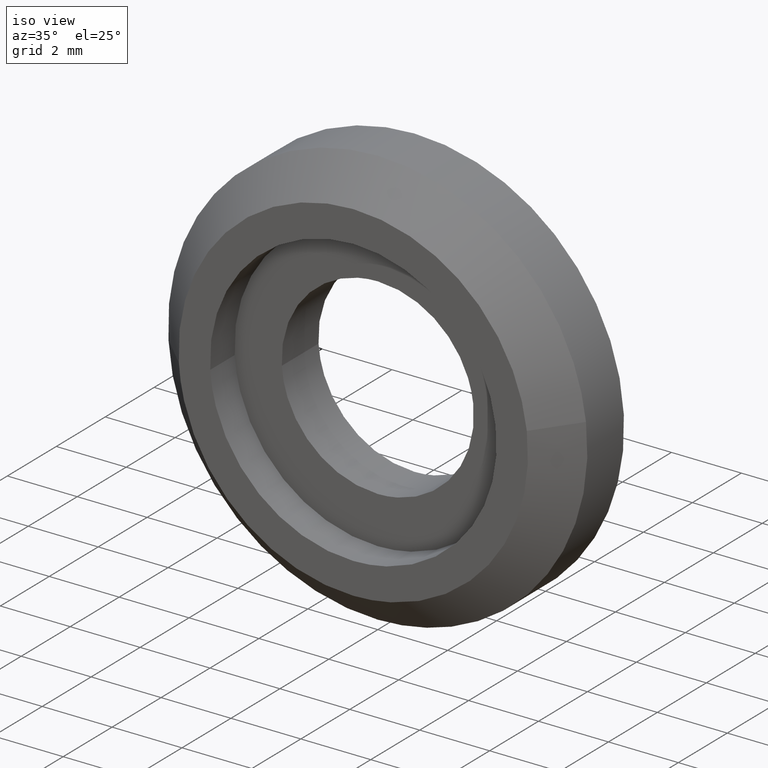
[diagram: clean part render]
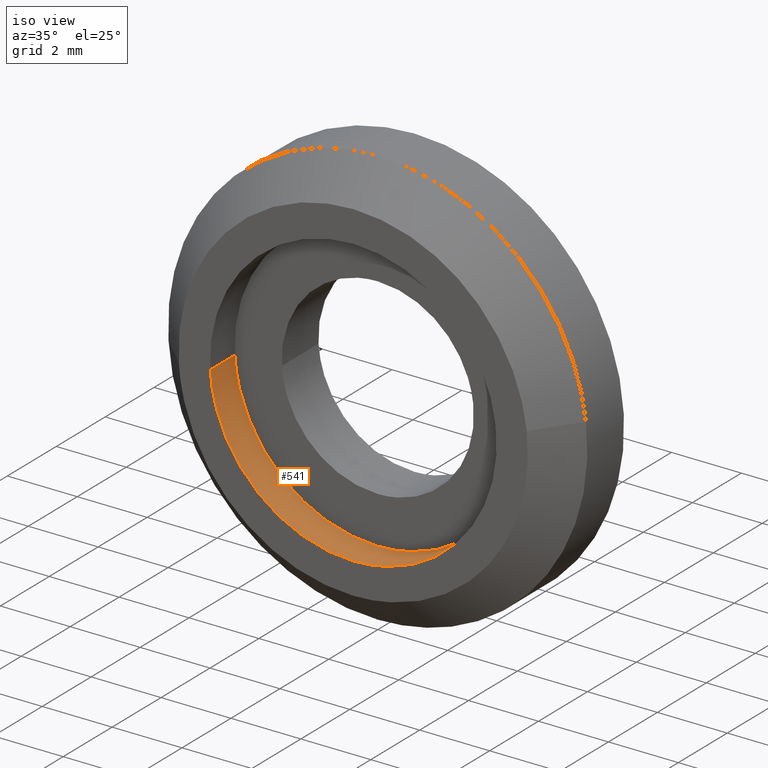
[diagram: same view with one face highlighted and labeled with its STEP entity id]
A machine part, iso view. The second image highlights one B-rep face of the part: STEP entity #541.
In plain terms, the highlighted face is a freeform B-spline surface patch.
Its self-contained STEP definition (entity closure, byte-faithful):
#439=CARTESIAN_POINT('',(4.071339058091032,-1.025000000000000,0.483940362092710));
#440=CARTESIAN_POINT('',(4.085189223339283,-1.025000000000000,0.367420387415709));
#441=CARTESIAN_POINT('',(4.092352673529653,-1.025000000000000,0.250299012092914));
#442=CARTESIAN_POINT('',(4.342651685622566,-1.025000000000000,-3.842053661436740));
#443=CARTESIAN_POINT('',(0.250299012092914,-1.025000000000000,-4.092352673529653));
#444=CARTESIAN_POINT('',(-3.842053661436740,-1.025000000000000,-4.342651685622566));
#445=CARTESIAN_POINT('',(-4.092352673529653,-1.025000000000000,-0.250299012092914));
#446=CARTESIAN_POINT('',(4.071339058091032,0.025625000000000,0.483940362092710));
#447=CARTESIAN_POINT('',(4.085189223339283,0.025625000000000,0.367420387415709));
#448=CARTESIAN_POINT('',(4.092352673529653,0.025625000000000,0.250299012092914));
#449=CARTESIAN_POINT('',(4.342651685622566,0.025625000000000,-3.842053661436740));
#450=CARTESIAN_POINT('',(0.250299012092914,0.025625000000000,-4.092352673529653));
#451=CARTESIAN_POINT('',(-3.842053661436740,0.025625000000000,-4.342651685622566));
#452=CARTESIAN_POINT('',(-4.092352673529653,0.025625000000000,-0.250299012092914));
#460=(BOUNDED_SURFACE()B_SPLINE_SURFACE(2,1,((#439,#446),(#440,#447),(#441,#448),(#442,#449),(#443,#450),(#444,#451),(#445,#452)),.UNSPECIFIED.,.F.,.F.,.U.)B_SPLINE_SURFACE_WITH_KNOTS((3,2,2,3),(2,2),(0.0,0.271724096916751,7.064826519835508,13.857928942754270),(0.0,1.0),.UNSPECIFIED.)GEOMETRIC_REPRESENTATION_ITEM()RATIONAL_B_SPLINE_SURFACE(((0.977505800795127,0.977505800795127),(0.988284271247462,0.988284271247462),(1.0,1.0),(0.707106781186548,0.707106781186548),(1.0,1.0),(0.707106781186548,0.707106781186548),(1.0,1.0)))REPRESENTATION_ITEM('')SURFACE());
#461=CARTESIAN_POINT('',(4.071339481019626,4.606795E-014,0.483936804012672));
#462=VERTEX_POINT('',#461);
#463=CARTESIAN_POINT('',(0.0,0.0,-4.100000000000001));
#464=VERTEX_POINT('',#463);
#465=CARTESIAN_POINT('',(4.071339481019626,4.606795E-014,0.483936804012673));
#466=CARTESIAN_POINT('',(4.100000000000001,0.0,0.242817092725262));
#467=CARTESIAN_POINT('',(4.100000000000001,0.0,0.0));
#468=CARTESIAN_POINT('',(4.100000000000001,0.0,-4.100000000000001));
#469=CARTESIAN_POINT('',(0.0,0.0,-4.100000000000001));
#477=(BOUNDED_CURVE()B_SPLINE_CURVE(2,(#465,#466,#467,#468,#469),.UNSPECIFIED.,.F.,.U.)B_SPLINE_CURVE_WITH_KNOTS((3,2,3),(0.229562621213272,0.250000000000000,0.500000000000000),.UNSPECIFIED.)CURVE()GEOMETRIC_REPRESENTATION_ITEM()RATIONAL_B_SPLINE_CURVE((0.956027043681484,0.976056121372181,1.0,0.707106781186547,1.0))REPRESENTATION_ITEM(''));
#478=EDGE_CURVE('',#462,#464,#477,.T.);
#479=ORIENTED_EDGE('',*,*,#478,.T.);
#480=CARTESIAN_POINT('',(-4.092352866307658,-4.467954E-014,-0.250295860160577));
#481=VERTEX_POINT('',#480);
#482=CARTESIAN_POINT('',(0.0,0.0,-4.100000000000001));
#483=CARTESIAN_POINT('',(-3.856897850447983,0.0,-4.100000000000000));
#484=CARTESIAN_POINT('',(-4.092352866307658,-4.467954E-014,-0.250295860160578));
#492=(BOUNDED_CURVE()B_SPLINE_CURVE(2,(#482,#483,#484),.UNSPECIFIED.,.F.,.U.)B_SPLINE_CURVE_WITH_KNOTS((3,3),(0.500000000000000,0.739333095137616),.UNSPECIFIED.)CURVE()GEOMETRIC_REPRESENTATION_ITEM()RATIONAL_B_SPLINE_CURVE((1.0,0.719603837586229,0.976072326494038))REPRESENTATION_ITEM(''));
#493=EDGE_CURVE('',#464,#481,#492,.T.);
#494=ORIENTED_EDGE('',*,*,#493,.T.);
#495=CARTESIAN_POINT('',(-4.092352863930728,-1.0,-0.250295899024020));
#496=VERTEX_POINT('',#495);
#497=CARTESIAN_POINT('',(-4.092352863930728,-1.0,-0.250295899024020));
#498=CARTESIAN_POINT('',(-4.092352866307658,-4.467954E-014,-0.250295860160577));
#499=QUASI_UNIFORM_CURVE('',1,(#497,#498),.UNSPECIFIED.,.F.,.U.);
#500=EDGE_CURVE('',#496,#481,#499,.T.);
#501=ORIENTED_EDGE('',*,*,#500,.F.);
#502=CARTESIAN_POINT('',(0.0,-1.0,-4.100000000000001));
#503=VERTEX_POINT('',#502);
#504=CARTESIAN_POINT('',(0.0,-1.0,-4.100000000000001));
#505=CARTESIAN_POINT('',(-3.856897813752122,-1.0,-4.100000000000001));
#506=CARTESIAN_POINT('',(-4.092352863930728,-1.0,-0.250295899024020));
#514=(BOUNDED_CURVE()B_SPLINE_CURVE(2,(#504,#505,#506),.UNSPECIFIED.,.F.,.U.)B_SPLINE_CURVE_WITH_KNOTS((3,3),(0.500000000000000,0.739333093499008),.UNSPECIFIED.)CURVE()GEOMETRIC_REPRESENTATION_ITEM()RATIONAL_B_SPLINE_CURVE((1.0,0.719603839505978,0.976072322982185))REPRESENTATION_ITEM(''));
#515=EDGE_CURVE('',#503,#496,#514,.T.);
#516=ORIENTED_EDGE('',*,*,#515,.F.);
#517=CARTESIAN_POINT('',(4.071339475799119,-1.0,0.483936847932902));
#518=VERTEX_POINT('',#517);
#519=CARTESIAN_POINT('',(4.071339475799119,-1.0,0.483936847932902));
#520=CARTESIAN_POINT('',(4.100000000000000,-1.0,0.242817114917531));
#521=CARTESIAN_POINT('',(4.100000000000001,-1.0,0.0));
#522=CARTESIAN_POINT('',(4.100000000000001,-1.0,-4.100000000000001));
#523=CARTESIAN_POINT('',(0.0,-1.0,-4.100000000000001));
#531=(BOUNDED_CURVE()B_SPLINE_CURVE(2,(#519,#520,#521,#522,#523),.UNSPECIFIED.,.F.,.U.)B_SPLINE_CURVE_WITH_KNOTS((3,2,3),(0.229562619390121,0.250000000000000,0.500000000000000),.UNSPECIFIED.)CURVE()GEOMETRIC_REPRESENTATION_ITEM()RATIONAL_B_SPLINE_CURVE((0.956027040108030,0.976056119236228,1.0,0.707106781186547,1.0))REPRESENTATION_ITEM(''));
#532=EDGE_CURVE('',#518,#503,#531,.T.);
#533=ORIENTED_EDGE('',*,*,#532,.F.);
#534=CARTESIAN_POINT('',(4.071339475799119,-1.0,0.483936847932902));
#535=CARTESIAN_POINT('',(4.071339481019626,4.606795E-014,0.483936804012672));
#536=QUASI_UNIFORM_CURVE('',1,(#534,#535),.UNSPECIFIED.,.F.,.U.);
#537=EDGE_CURVE('',#518,#462,#536,.T.);
#538=ORIENTED_EDGE('',*,*,#537,.T.);
#539=EDGE_LOOP('',(#479,#494,#501,#516,#533,#538));
#540=FACE_OUTER_BOUND('',#539,.T.);
#541=ADVANCED_FACE('',(#540),#460,.F.);